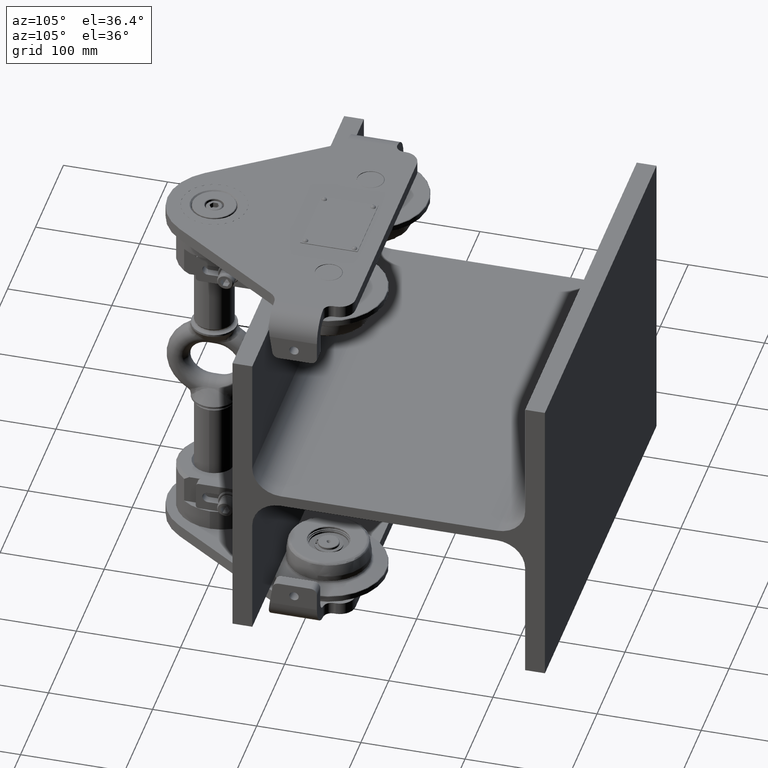
[diagram: clean part render]
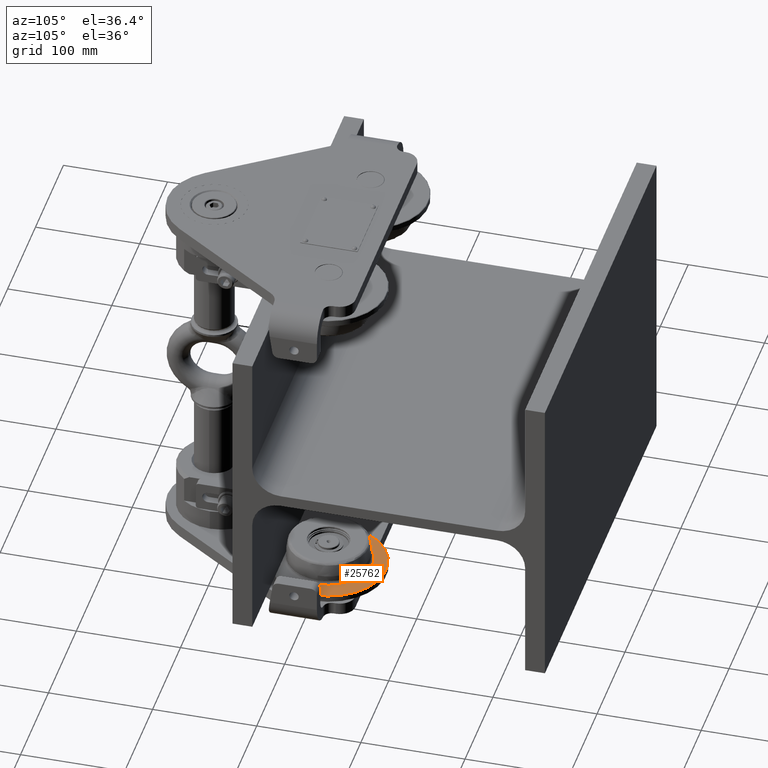
[diagram: same view with one face highlighted and labeled with its STEP entity id]
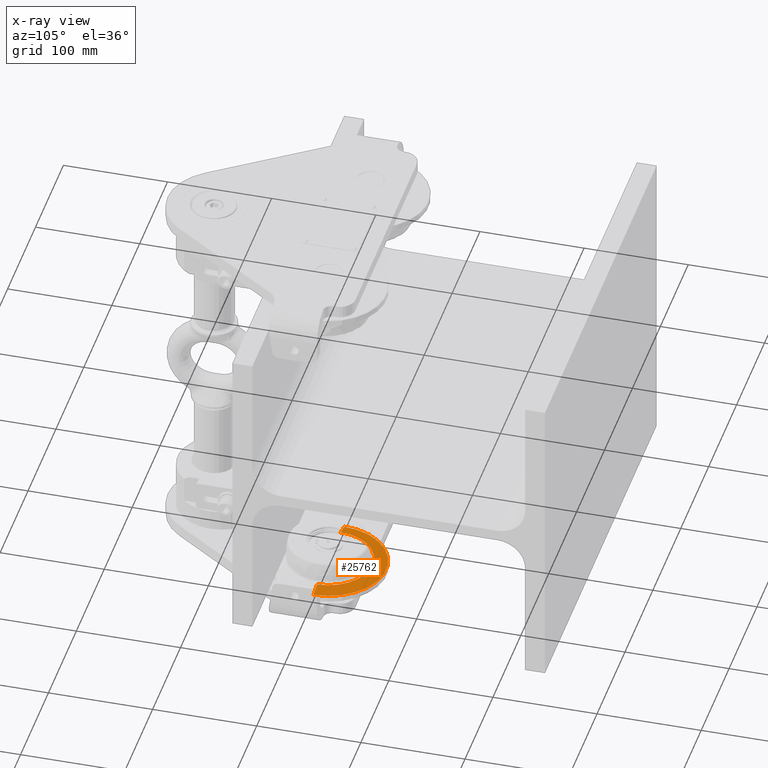
[diagram: x-ray of the same camera — body ghosted, the highlighted face saturated]
A machine part, auxiliary view. The second image highlights one B-rep face of the part: STEP entity #25762.
The next image is the same camera in x-ray: the body ghosted, the highlighted face saturated — about 0% of this face is hidden behind the body in this view.
In plain terms, the highlighted conical surface has half-angle 78 deg.
Its self-contained STEP definition (entity closure, byte-faithful):
#546 = CIRCLE ( 'NONE', #25814, 55.10395584540884800 ) ;
#874 = DIRECTION ( 'NONE',  ( -0.9781476007338054700, 0.0000000000000000000, -0.2079116908177603400 ) ) ;
#1613 = CONICAL_SURFACE ( 'NONE', #30553, 42.00175524033660700, 1.361356816555576100 ) ;
#3538 = EDGE_LOOP ( 'NONE', ( #40218, #34913, #18144, #14654 ) ) ;
#4291 = DIRECTION ( 'NONE',  ( 0.0000000000000000000, -0.0000000000000000000, -1.000000000000000000 ) ) ;
#5946 = VERTEX_POINT ( 'NONE', #41514 ) ;
#5972 = DIRECTION ( 'NONE',  ( 1.000000000000000000, 0.0000000000000000000, 0.0000000000000000000 ) ) ;
#6036 = LINE ( 'NONE', #17577, #24313 ) ;
#12262 = CARTESIAN_POINT ( 'NONE',  ( 75.00000000000005700, -90.99999999999984400, -152.5972667968403300 ) ) ;
#13207 = EDGE_CURVE ( 'NONE', #13737, #5946, #47996, .T. ) ;
#13737 = VERTEX_POINT ( 'NONE', #48882 ) ;
#14319 = CARTESIAN_POINT ( 'NONE',  ( 75.00000000000005700, -90.99999999999984400, -155.3822255077653800 ) ) ;
#14654 = ORIENTED_EDGE ( 'NONE', *, *, #23843, .F. ) ;
#16063 = EDGE_CURVE ( 'NONE', #44201, #24879, #546, .T. ) ;
#17388 = LINE ( 'NONE', #42359, #49404 ) ;
#17577 = CARTESIAN_POINT ( 'NONE',  ( 32.99824475966344300, -90.99999999999984400, -152.5972667968403300 ) ) ;
#17844 = CARTESIAN_POINT ( 'NONE',  ( 19.89604415459124500, -90.99999999999984400, -155.3822255077653800 ) ) ;
#18144 = ORIENTED_EDGE ( 'NONE', *, *, #16063, .T. ) ;
#20188 = CARTESIAN_POINT ( 'NONE',  ( 75.00000000000005700, -90.99999999999984400, -152.5972667968403300 ) ) ;
#20718 = DIRECTION ( 'NONE',  ( -1.000000000000000000, 0.0000000000000000000, 0.0000000000000000000 ) ) ;
#23843 = EDGE_CURVE ( 'NONE', #13737, #24879, #6036, .T. ) ;
#24313 = VECTOR ( 'NONE', #874, 1000.000000000000000 ) ;
#24735 = DIRECTION ( 'NONE',  ( 0.0000000000000000000, -0.0000000000000000000, -1.000000000000000000 ) ) ;
#24879 = VERTEX_POINT ( 'NONE', #17844 ) ;
#25762 = ADVANCED_FACE ( 'NONE', ( #50521 ), #1613, .T. ) ;
#25814 = AXIS2_PLACEMENT_3D ( 'NONE', #14319, #47028, #5972 ) ;
#30553 = AXIS2_PLACEMENT_3D ( 'NONE', #20188, #24735, #53946 ) ;
#34913 = ORIENTED_EDGE ( 'NONE', *, *, #51872, .T. ) ;
#38359 = CARTESIAN_POINT ( 'NONE',  ( 130.1039558454088500, -90.99999999999984400, -155.3822255077653800 ) ) ;
#40218 = ORIENTED_EDGE ( 'NONE', *, *, #13207, .T. ) ;
#41514 = CARTESIAN_POINT ( 'NONE',  ( 117.0017552403366500, -90.99999999999984400, -152.5972667968403300 ) ) ;
#41822 = DIRECTION ( 'NONE',  ( 0.9781476007338054700, 1.197885328332318200E-016, -0.2079116908177603400 ) ) ;
#42359 = CARTESIAN_POINT ( 'NONE',  ( 117.0017552403366500, -90.99999999999984400, -152.5972667968403300 ) ) ;
#44201 = VERTEX_POINT ( 'NONE', #38359 ) ;
#47028 = DIRECTION ( 'NONE',  ( 0.0000000000000000000, 0.0000000000000000000, 1.000000000000000000 ) ) ;
#47996 = CIRCLE ( 'NONE', #51515, 42.00175524033660700 ) ;
#48882 = CARTESIAN_POINT ( 'NONE',  ( 32.99824475966344300, -90.99999999999984400, -152.5972667968403300 ) ) ;
#49404 = VECTOR ( 'NONE', #41822, 1000.000000000000000 ) ;
#50521 = FACE_OUTER_BOUND ( 'NONE', #3538, .T. ) ;
#51515 = AXIS2_PLACEMENT_3D ( 'NONE', #12262, #4291, #20718 ) ;
#51872 = EDGE_CURVE ( 'NONE', #5946, #44201, #17388, .T. ) ;
#53946 = DIRECTION ( 'NONE',  ( -1.000000000000000000, 0.0000000000000000000, 0.0000000000000000000 ) ) ;